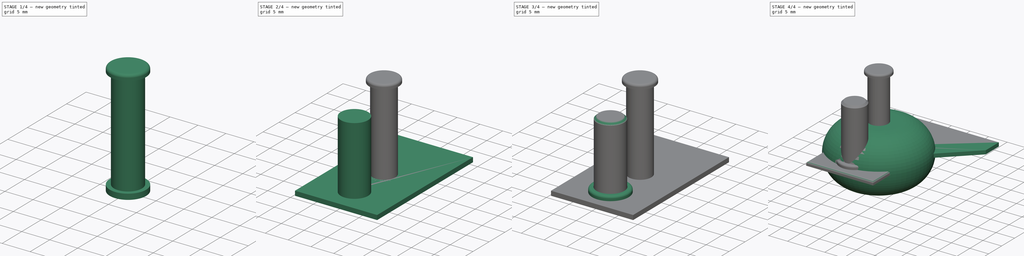
[diagram: build sequence overview — one tinted view per stage of 4, left to right]
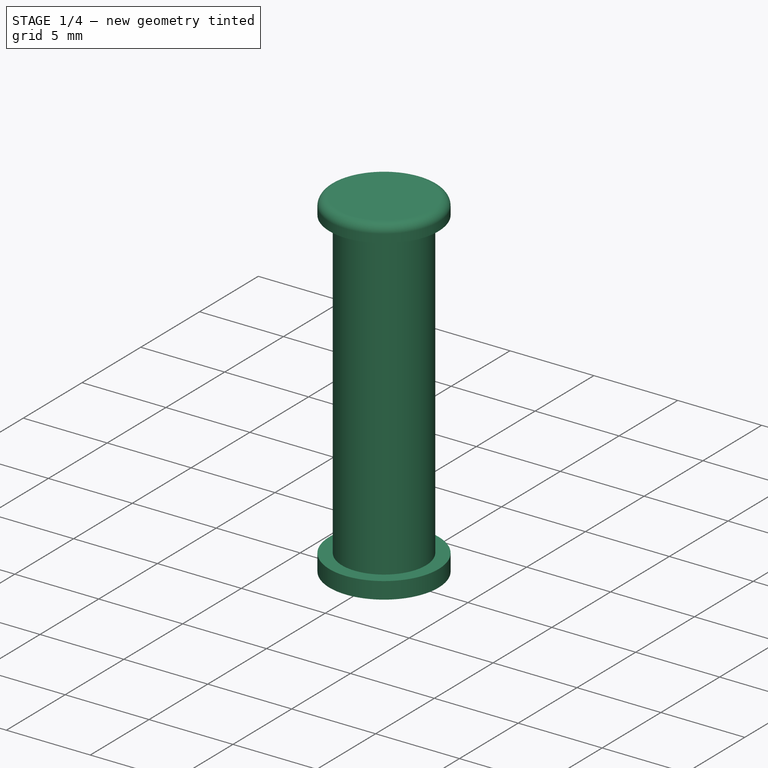
[diagram: stage 1 of 4 — iso view after this stage's code; geometry added in this stage tinted green]
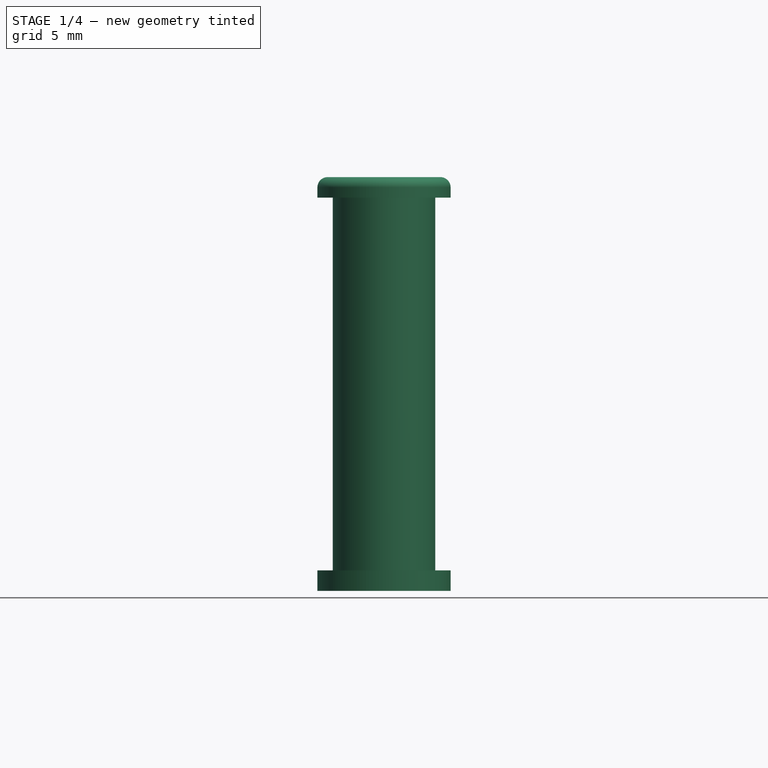
[diagram: stage 1 of 4 — front view after this stage's code; geometry added in this stage tinted green]
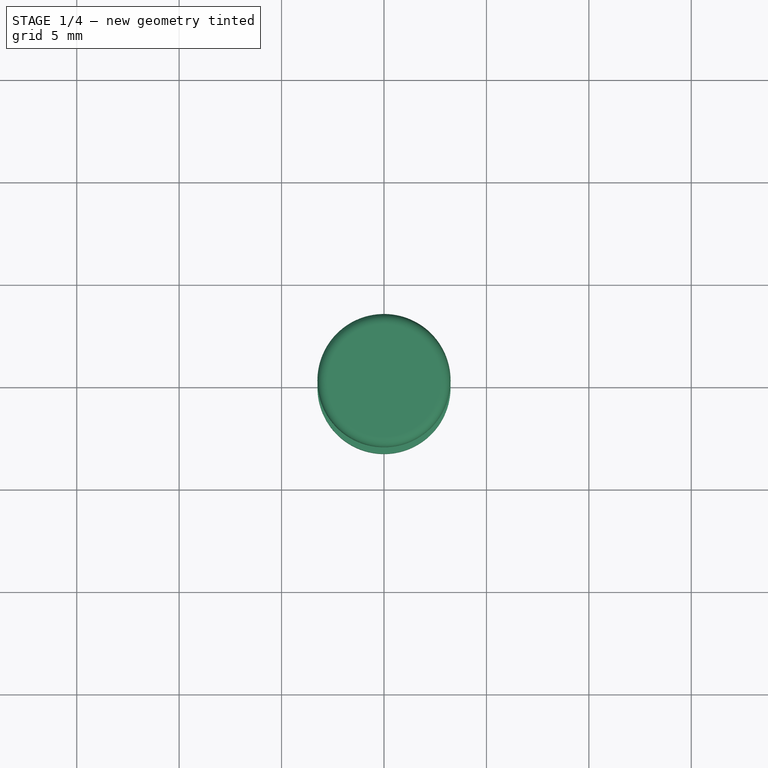
[diagram: stage 1 of 4 — top view after this stage's code; geometry added in this stage tinted green]
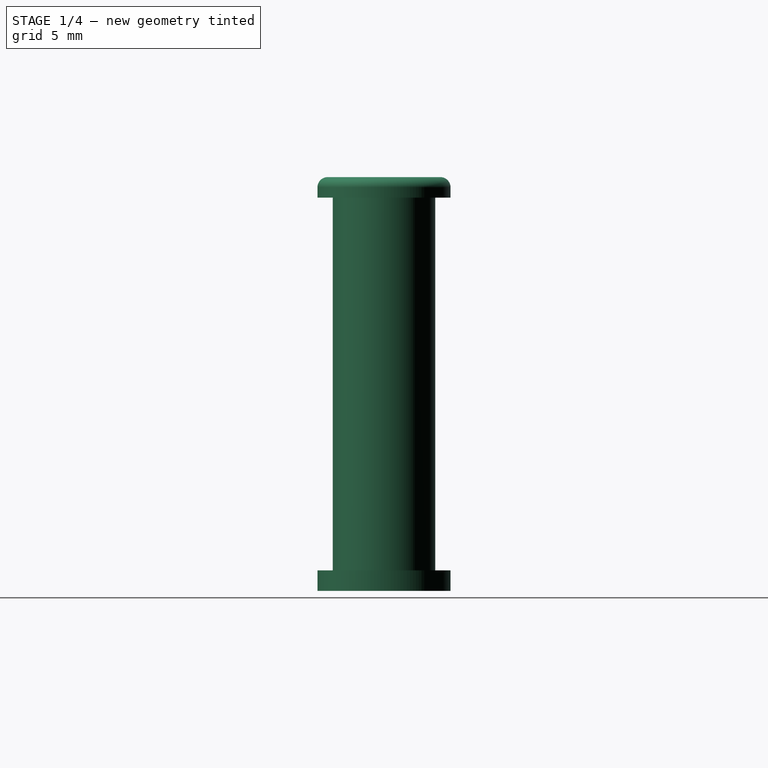
[diagram: stage 1 of 4 — right view after this stage's code; geometry added in this stage tinted green]
FCSTD DOCUMENT  (FreeCAD 1.0R39109 (Git))
Label: ruota_girevole_componenti
License: All rights reserved
LicenseURL: https://en.wikipedia.org/wiki/All_rights_reserved
objects: PartDesign::CoordinateSystem×10, Sketcher::SketchObject×9, PartDesign::Pad×7, PartDesign::Body×4, PartDesign::Fillet×4, PartDesign::Revolution×1, Spreadsheet::Sheet×1, PartDesign::Pocket×1, PartDesign::Chamfer×1
note: 74 computed .brp shape members not serialized (recipe doc carries the construction recipe); baked Part::Feature solids carry a one-line shape summary decoded from their .brp

FEATURE [PartDesign::CoordinateSystem] LCS_lato_sx
  AttacherType = Attacher::AttachEngine3D
  AttachmentSupport = -> [Pad002]
  MapMode = 7
  Placement = pos=(-9,15,0) rot=(0,0,1;0rad)
FEATURE [PartDesign::CoordinateSystem] LCS_lato_dx
  AttacherType = Attacher::AttachEngine3D
  AttachmentSupport = -> [Pad002]
  MapMode = 7
  Placement = pos=(9,15,0) rot=(0,0,1;0rad)
FEATURE [PartDesign::CoordinateSystem] LCS_perno
  AttacherType = Attacher::AttachEngine3D
  AttachmentOffset = pos=(0,0,2) rot=(0,0,1;0rad)
  AttachmentSupport = -> [Pad002]
  MapMode = 11
  Placement = pos=(0,-9.25,3) rot=(0,0,1;1.5708rad)
FEATURE [PartDesign::CoordinateSystem] LCS_base_sx
  AttacherType = Attacher::AttachEngine3D
  AttachmentSupport = -> [Pad]
  MapMode = 1
  Placement = pos=(-10,17.5,0) rot=(0,0,1;0rad)
FEATURE [PartDesign::CoordinateSystem] LCS_base_dx
  AttacherType = Attacher::AttachEngine3D
  AttachmentSupport = -> [Pad]
  MapMode = 1
  Placement = pos=(-10,17.5,1) rot=(0,0,1;0rad)
FEATURE [PartDesign::CoordinateSystem] LCS_cerchio_ruota
  AttacherType = Attacher::AttachEngine3D
  AttachmentSupport = -> [Pocket]
  MapMode = 11
  Placement = pos=(0,2e-15,7.5) rot=(0,0,-1;1.5708rad)
FEATURE [PartDesign::Body] Body  label="BodyRuota"
  AllowCompound = false
  Group = -> [Sketch,Revolution,Sketch001,Pocket,LCS_cerchio_ruota]
  Origin = -> Origin001
  Tip = -> Pocket
FEATURE [PartDesign::CoordinateSystem] LCS_perno_ruota
  AttacherType = Attacher::AttachEngine3D
  AttachmentSupport = -> [Pad]
  MapMode = 11
  Placement = pos=(0,0,0) rot=(0,0,1;1.5708rad)
FEATURE [PartDesign::CoordinateSystem] LCS_nut
  AttacherType = Attacher::AttachEngine3D
  AttachmentSupport = -> [Pad]
  MapMode = 11
  Placement = pos=(0,0,0) rot=(0.707107,-0.707107,0;3.14159rad)
FEATURE [PartDesign::Body] Body001  label="BodyLatoForcella"
  AllowCompound = false
  Group = -> [Sketch002,Pad,LCS_base_sx,LCS_base_dx,LCS_perno_ruota,LCS_nut]
  Origin = -> Origin002
  Tip = -> Pad
FEATURE [PartDesign::CoordinateSystem] LCS_Origin001
  AttacherType = Attacher::AttachEngine3D
  AttachmentSupport = -> [X_Axis004]
  MapMode = 2
FEATURE [Sketcher::SketchObject] Sketch005
  ArcFitTolerance = 1e-06
  AttachmentSupport = -> [XY_Plane004]
  FullyConstrained = true
  MakeInternals = false
  MapMode = 5
  expr: .Constraints.diametro_rivetto = <<mis_ruota>>.r_foro + 1.5 mm
  sketch-geometry (1):
    g0: Circle CenterX=0 CenterY=0 CenterZ=0 NormalX=0 NormalY=0 NormalZ=1 AngleXU=0 Radius=3.25
  constraints (2):
    c: Coincident(g0,g-1)
    c: Diameter(g0) = 6.5  'diametro_rivetto'
FEATURE [PartDesign::Pad] Pad003
  Direction = (0,0,1)
  Length = 1
  Length2 = 10
  Profile = -> Sketch005
  ReferenceAxis = -> Sketch005 [N_Axis]
  Refine = true
  Suppressed = false
  Type = 0
FEATURE [Sketcher::SketchObject] Sketch006
  ArcFitTolerance = 1e-06
  AttachmentSupport = -> [Pad003]
  FullyConstrained = true
  MakeInternals = false
  MapMode = 5
  Placement = pos=(0,0,1) rot=(0,0,1;0rad)
  expr: Constraints[1] = <<mis_ruota>>.r_foro
  sketch-geometry (1):
    g0: Circle CenterX=0 CenterY=0 CenterZ=0 NormalX=0 NormalY=0 NormalZ=1 AngleXU=0 Radius=2.5
  constraints (2):
    c: Coincident(g0,g-1)
    c: Diameter(g0) = 5
FEATURE [PartDesign::Pad] Pad004
  BaseFeature = -> Pad003
  Direction = (0,0,1)
  Length = 18.2
  Length2 = 10
  Profile = -> Sketch006
  ReferenceAxis = -> Sketch006 [N_Axis]
  Refine = true
  Suppressed = false
  Type = 0
FEATURE [Sketcher::SketchObject] Sketch007
  ArcFitTolerance = 1e-06
  AttachmentSupport = -> [Pad004]
  FullyConstrained = true
  MakeInternals = false
  MapMode = 5
  Placement = pos=(0,0,19.2) rot=(0,0,1;0rad)
  expr: Constraints[1] = <<mis_ruota>>.r_foro + 1.5 mm
  sketch-geometry (1):
    g0: Circle CenterX=0 CenterY=0 CenterZ=0 NormalX=0 NormalY=0 NormalZ=1 AngleXU=0 Radius=3.25
  constraints (2):
    c: Coincident(g0,g-1)
    c: Diameter(g0) = 6.5
FEATURE [PartDesign::Pad] Pad005
  BaseFeature = -> Pad004
  Direction = (0,0,1)
  Length = 1
  Length2 = 10
  Profile = -> Sketch007
  ReferenceAxis = -> Sketch007 [N_Axis]
  Refine = true
  Suppressed = false
  Type = 0
FEATURE [PartDesign::Body] Body002  label="BodyBaseForcella"
  AllowCompound = false
  Group = -> [Sketch003,Pad001,Sketch004,Pad002,LCS_lato_sx,LCS_lato_dx,LCS_perno,Sketch008,Pad006,Fillet,Chamfer,Fillet001]
  Origin = -> Origin003
  Tip = -> Fillet001
FEATURE [PartDesign::Fillet] Fillet002
  Base = -> Pad005 [Edge9]
  BaseFeature = -> Pad005
  Radius = 0.5
  Refine = true
  SupportTransform = false
  Suppressed = false
  UseAllEdges = false
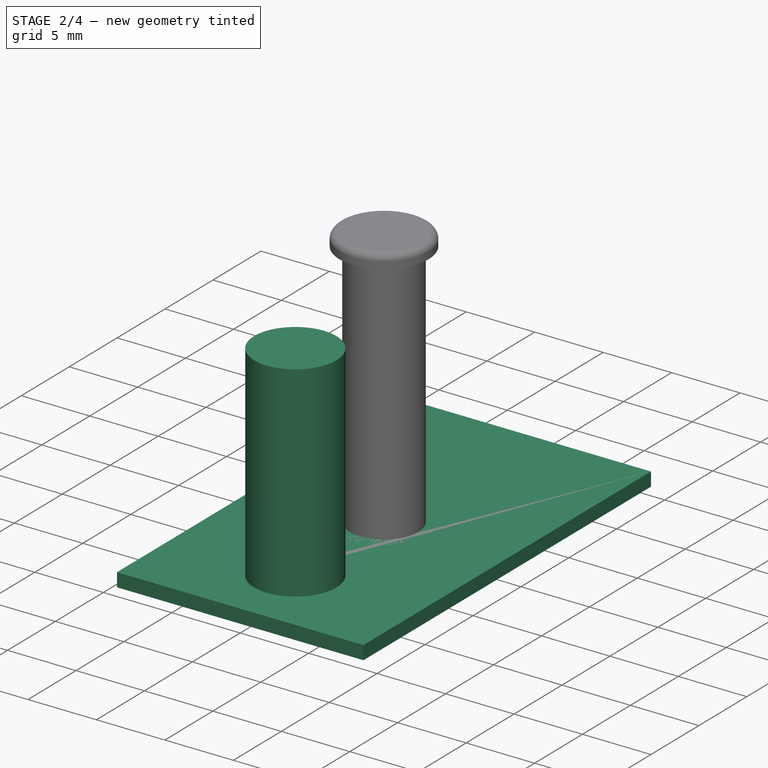
[diagram: stage 2 of 4 — iso view after this stage's code; geometry added in this stage tinted green]
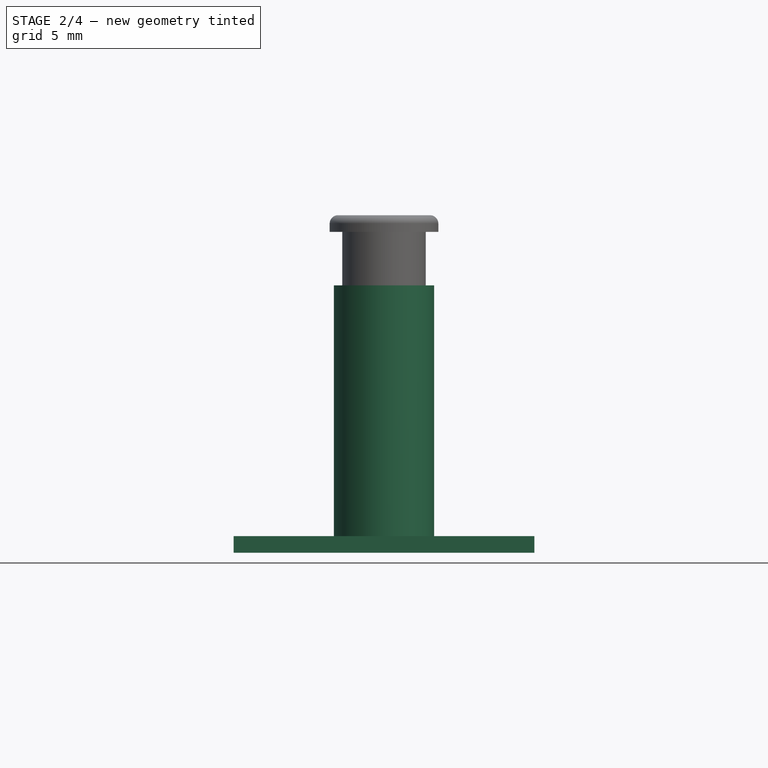
[diagram: stage 2 of 4 — front view after this stage's code; geometry added in this stage tinted green]
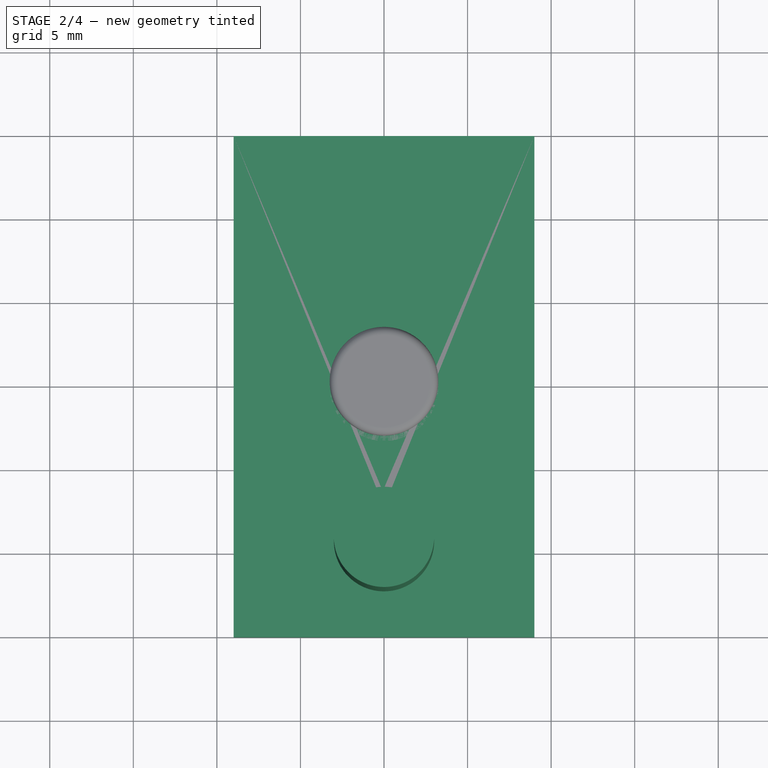
[diagram: stage 2 of 4 — top view after this stage's code; geometry added in this stage tinted green]
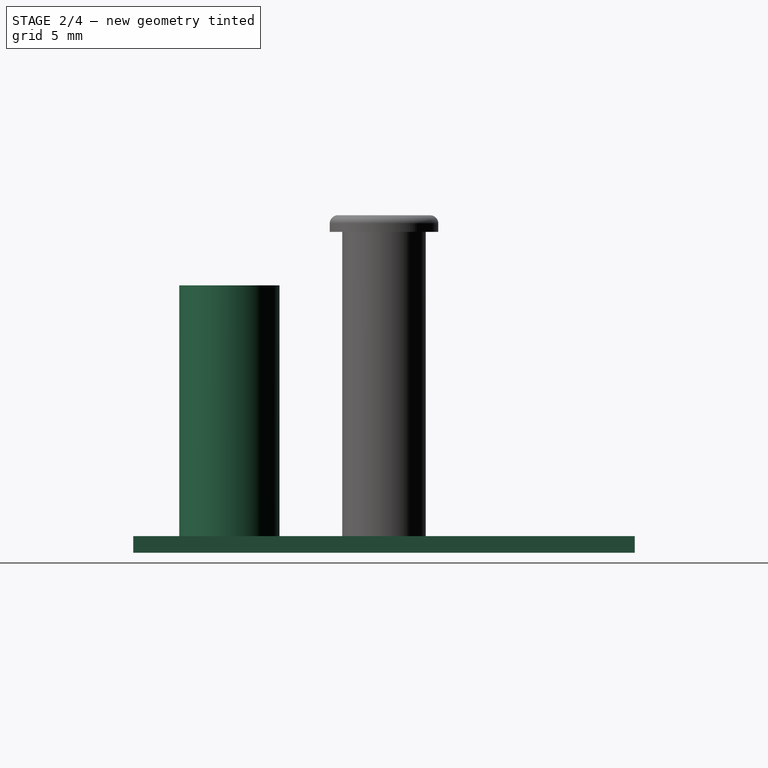
[diagram: stage 2 of 4 — right view after this stage's code; geometry added in this stage tinted green]
FEATURE [Sketcher::SketchObject] Sketch003
  ArcFitTolerance = 1e-06
  AttachmentSupport = -> [XY_Plane003]
  FullyConstrained = true
  MakeInternals = false
  MapMode = 5
  expr: Constraints[10] = <<mis_ruota>>.larg + 3 mm
  expr: Constraints[9] = <<mis_ruota>>.lung_base_fork
  sketch-geometry (4):
    g0: LineSegment StartX=-9 StartY=15 StartZ=0 EndX=-9 EndY=-15 EndZ=0
    g1: LineSegment StartX=-9 StartY=-15 StartZ=0 EndX=9 EndY=-15 EndZ=0
    g2: LineSegment StartX=9 StartY=-15 StartZ=0 EndX=9 EndY=15 EndZ=0
    g3: LineSegment StartX=9 StartY=15 StartZ=0 EndX=-9 EndY=15 EndZ=0
  constraints (11):
    c: Coincident(g0,g1)
    c: Coincident(g1,g2)
    c: Coincident(g2,g3)
    c: Coincident(g3,g0)
    c: Vertical(g0)
    c: Vertical(g2)
    c: Horizontal(g1)
    c: Horizontal(g3)
    c: Symmetric(g0,g1,g-1)
    c: DistanceY(g0,g0) = 30
    c: DistanceX(g3,g3) = 18
FEATURE [PartDesign::Pad] Pad001
  Direction = (0,0,1)
  Length = 1
  Length2 = 10
  Profile = -> Sketch003
  ReferenceAxis = -> Sketch003 [N_Axis]
  Refine = true
  Suppressed = false
  Type = 0
FEATURE [Sketcher::SketchObject] Sketch004
  ArcFitTolerance = 1e-06
  AttachmentSupport = -> [Pad001]
  FullyConstrained = true
  MakeInternals = false
  MapMode = 5
  Placement = pos=(0,0,1) rot=(0,0,1;0rad)
  expr: Constraints[1] = <<mis_ruota>>.pos_perno_fork
  expr: Constraints[2] = <<mis_ruota>>.diam_perno
  sketch-geometry (1):
    g0: Circle CenterX=0 CenterY=-9.25 CenterZ=0 NormalX=0 NormalY=0 NormalZ=1 AngleXU=0 Radius=3
  constraints (3):
    c: PointOnObject(g0,g-2)
    c: DistanceY(g0,g-1) = 9.25
    c: Diameter(g0) = 6
FEATURE [PartDesign::Pad] Pad002
  BaseFeature = -> Pad001
  Direction = (0,0,1)
  Length = 15
  Length2 = 10
  Profile = -> Sketch004
  ReferenceAxis = -> Sketch004 [N_Axis]
  Refine = true
  Suppressed = false
  Type = 0
  expr: Length = <<mis_ruota>>.lung_perno
FEATURE [PartDesign::Fillet] Fillet003
  Base = -> Fillet002 [Edge11]
  BaseFeature = -> Fillet002
  Radius = 0.5
  Refine = true
  SupportTransform = false
  Suppressed = false
  UseAllEdges = false
FEATURE [PartDesign::Body] BodyAsseRuota
  AllowCompound = false
  Group = -> [LCS_Origin001,Sketch005,Pad003,Sketch006,Pad004,Sketch007,Pad005,LCS_base_rivetto,Fillet002,Fillet003]
  Origin = -> Origin004
  Tip = -> Fillet003
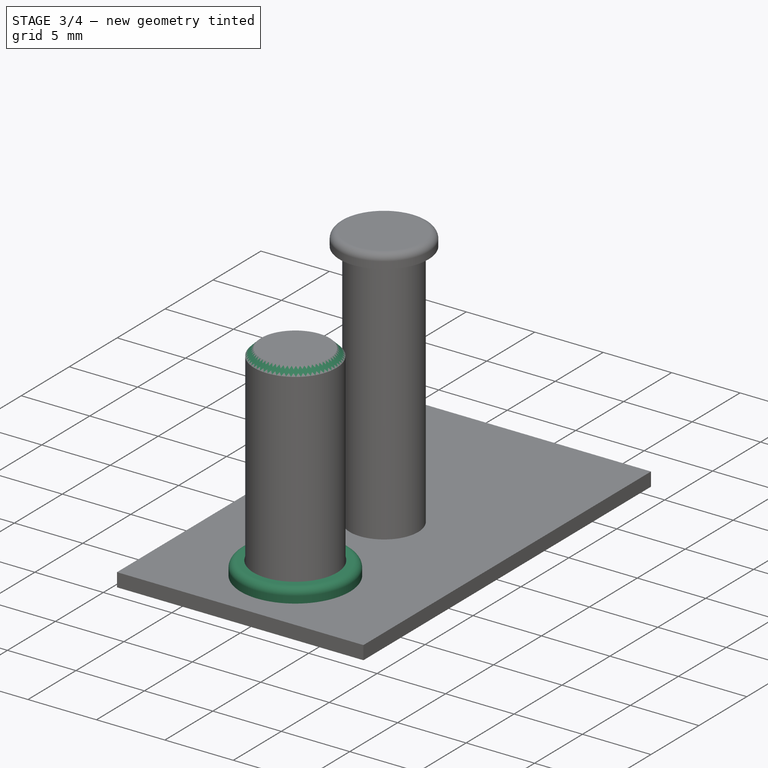
[diagram: stage 3 of 4 — iso view after this stage's code; geometry added in this stage tinted green]
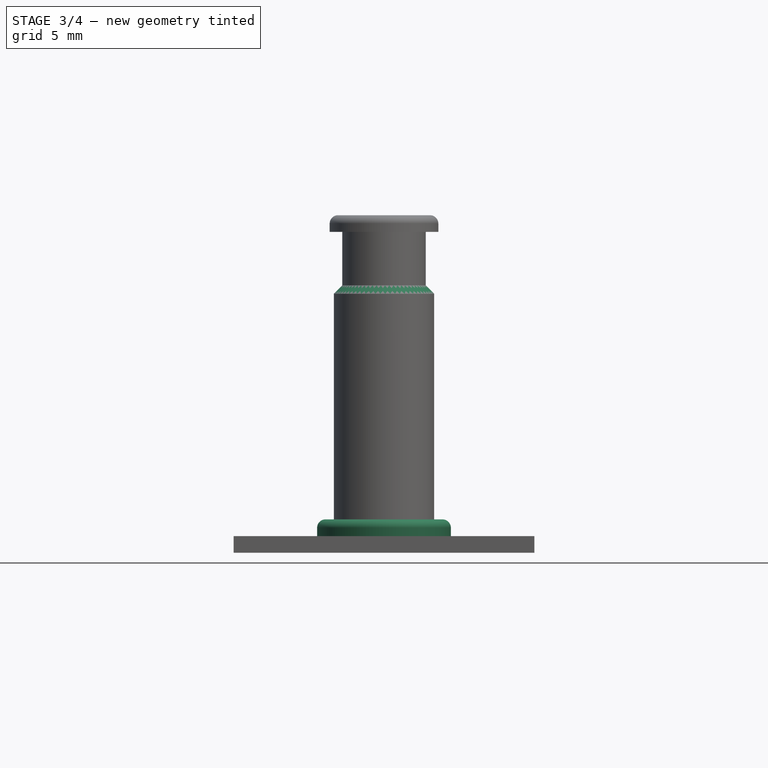
[diagram: stage 3 of 4 — front view after this stage's code; geometry added in this stage tinted green]
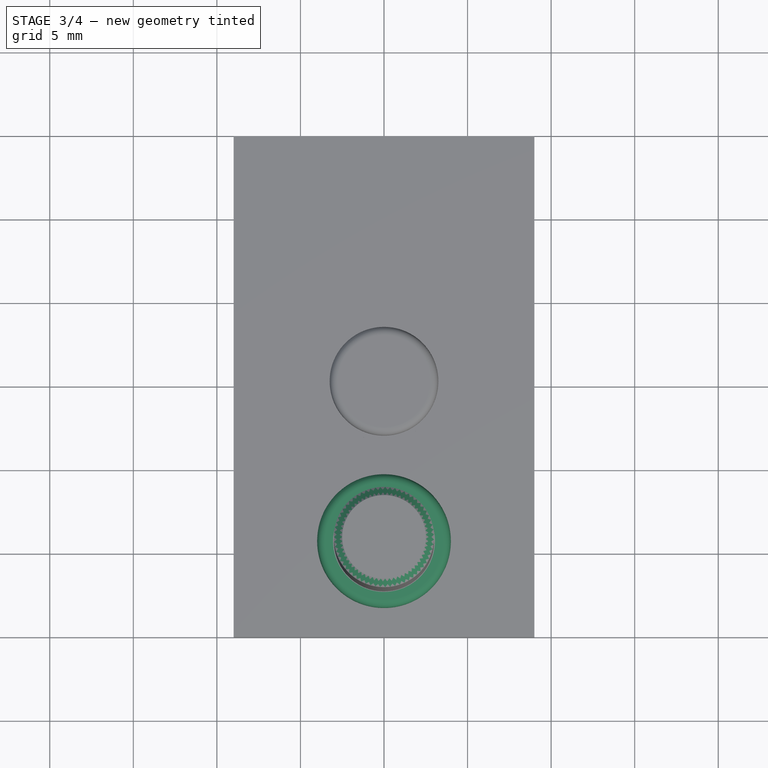
[diagram: stage 3 of 4 — top view after this stage's code; geometry added in this stage tinted green]
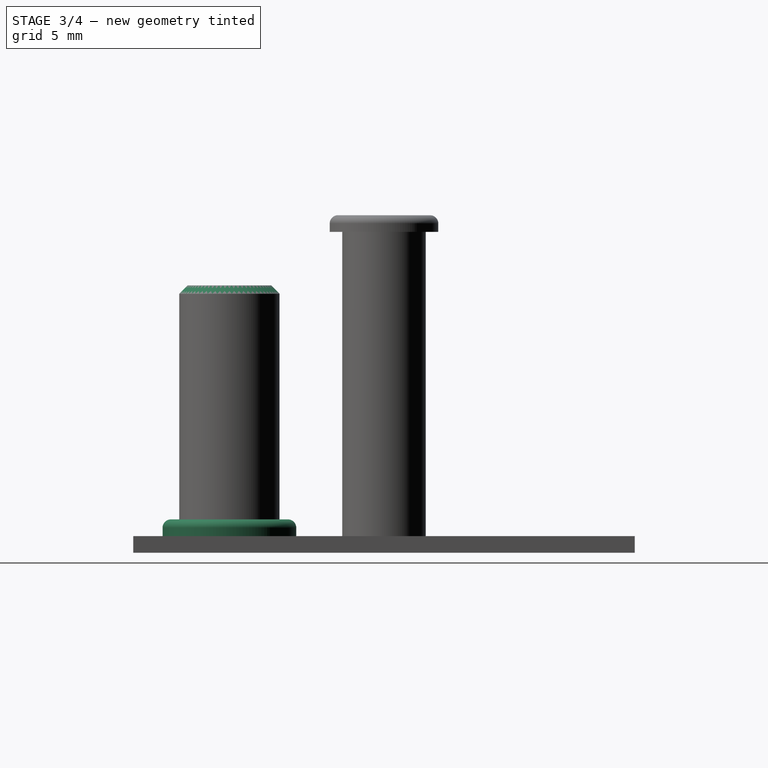
[diagram: stage 3 of 4 — right view after this stage's code; geometry added in this stage tinted green]
FEATURE [PartDesign::CoordinateSystem] LCS_base_rivetto
  AttacherType = Attacher::AttachEngine3D
  AttachmentSupport = -> [Pad005]
  MapMode = 11
  Placement = pos=(0,0,19.2) rot=(0,0,1;1.5708rad)
FEATURE [Sketcher::SketchObject] Sketch008  label="SketchRondellaBase"
  ArcFitTolerance = 1e-06
  AttachmentSupport = -> [XY_Plane003]
  ExternalGeometry = -> [Pad002]
  FullyConstrained = true
  MakeInternals = false
  MapMode = 5
  expr: Constraints[1] = <<mis_ruota>>.diam_int_rond_base
  expr: Constraints[3] = <<mis_ruota>>.diam_est_rond_base
  sketch-geometry (2):
    g0: Circle CenterX=0 CenterY=-9.25 CenterZ=0 NormalX=0 NormalY=0 NormalZ=1 AngleXU=0 Radius=3.05
    g1: Circle CenterX=0 CenterY=-9.25 CenterZ=0 NormalX=0 NormalY=0 NormalZ=1 AngleXU=0 Radius=4
  constraints (4):
    c: Coincident(g0,g-3)
    c: Diameter(g0) = 6.1
    c: Coincident(g1,g0)
    c: Diameter(g1) = 8
FEATURE [PartDesign::Pad] Pad006
  BaseFeature = -> Pad002
  Direction = (0,0,1)
  Length = 2
  Length2 = 10
  Profile = -> Sketch008
  ReferenceAxis = -> Sketch008 [N_Axis]
  Refine = true
  Suppressed = false
  Type = 0
  expr: Length = <<mis_ruota>>.spess_rond_base
FEATURE [PartDesign::Fillet] Fillet
  Base = -> Pad006 [Edge15]
  BaseFeature = -> Pad006
  Radius = 0.5
  Refine = true
  SupportTransform = false
  Suppressed = false
  UseAllEdges = false
FEATURE [PartDesign::Chamfer] Chamfer
  Angle = 45
  Base = -> Fillet [Edge23]
  BaseFeature = -> Fillet
  ChamferType = 0
  FlipDirection = false
  Refine = true
  Size = 0.5
  Size2 = 1
  SupportTransform = false
  Suppressed = false
  UseAllEdges = false
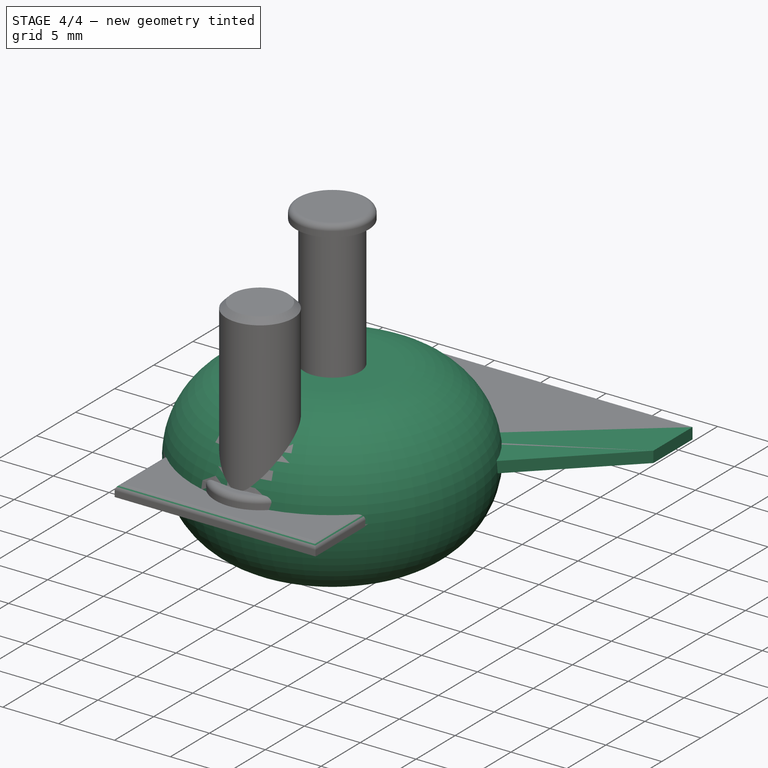
[diagram: stage 4 of 4 — iso view after this stage's code; geometry added in this stage tinted green]
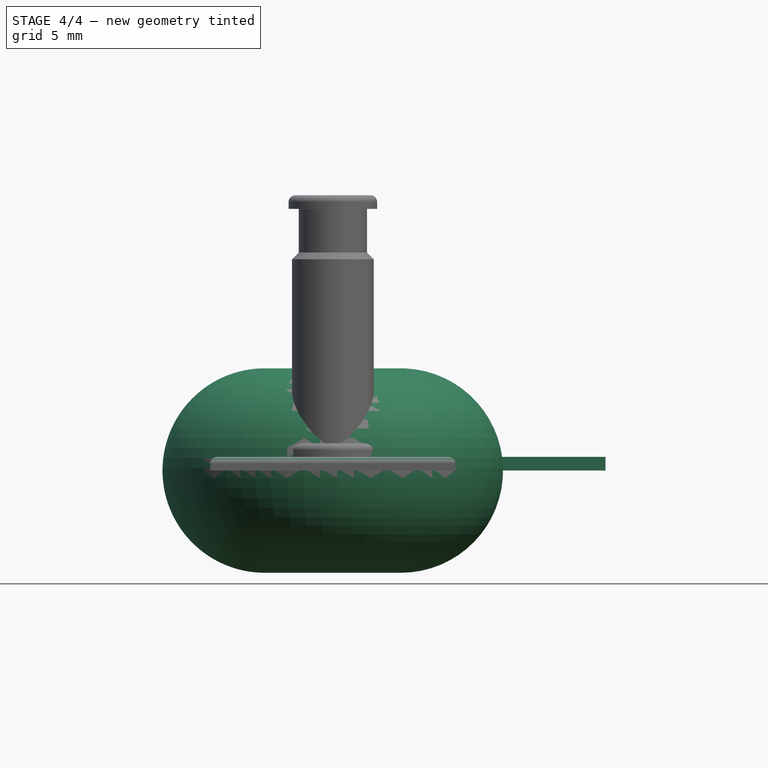
[diagram: stage 4 of 4 — front view after this stage's code; geometry added in this stage tinted green]
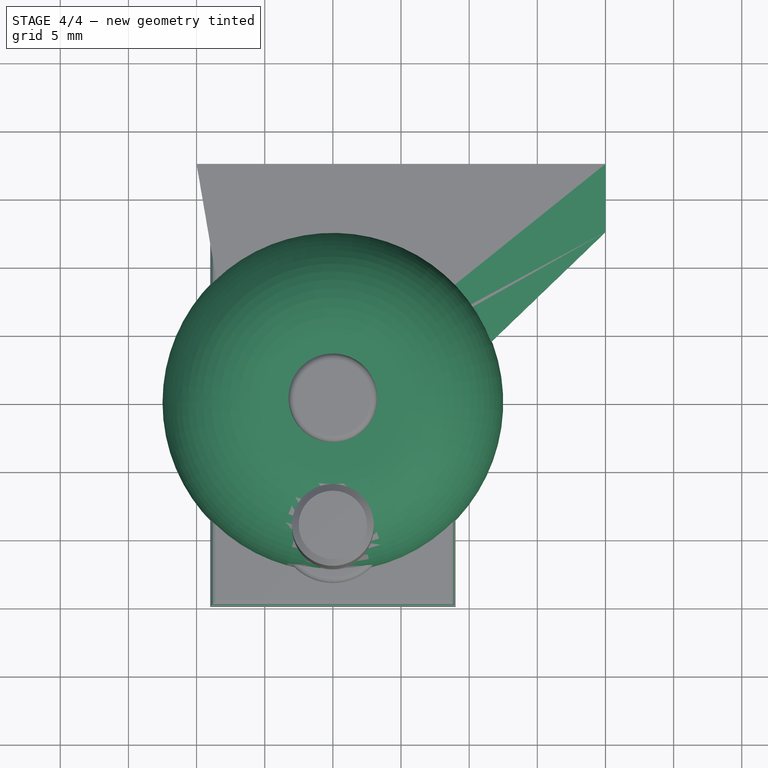
[diagram: stage 4 of 4 — top view after this stage's code; geometry added in this stage tinted green]
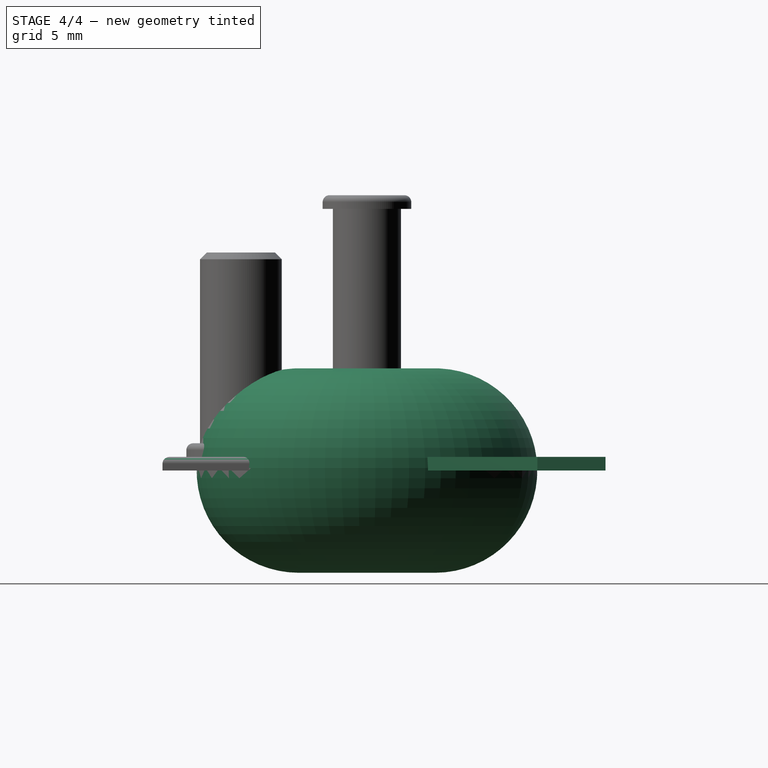
[diagram: stage 4 of 4 — right view after this stage's code; geometry added in this stage tinted green]
FEATURE [Sketcher::SketchObject] Sketch
  ArcFitTolerance = 1e-06
  AttachmentSupport = -> [XZ_Plane001]
  FullyConstrained = true
  MakeInternals = false
  MapMode = 5
  Placement = pos=(0,0,0) rot=(1,0,0;1.5708rad)
  expr: Constraints[0] = <<mis_ruota>>.larg
  expr: Constraints[12] = <<mis_ruota>>.larg / 2
  expr: Constraints[13] = <<mis_ruota>>.raggio
  sketch-geometry (5):
    g0: LineSegment StartX=5 StartY=7.5 StartZ=0 EndX=0 EndY=7.5 EndZ=0
    g1: LineSegment StartX=5 StartY=-7.5 StartZ=0 EndX=0 EndY=-7.5 EndZ=0
    g2: LineSegment StartX=0 StartY=7.5 StartZ=0 EndX=0 EndY=-7.5 EndZ=0
    g3: ArcOfCircle CenterX=5 CenterY=0 CenterZ=0 NormalX=0 NormalY=0 NormalZ=1 AngleXU=0 Radius=7.5 StartAngle=4.71239 EndAngle=7.85398
    g4: GeomPoint [constr] X=12.5 Y=0 Z=0
  constraints (14):
    c: DistanceY(g1,g0) = 15
    c: Horizontal(g0)
    c: PointOnObject(g1,g-2)
    c: Horizontal(g1)
    c: Coincident(g2,g0)
    c: Coincident(g2,g1)
    c: Vertical(g2)
    c: Symmetric(g1,g0,g-1)
    c: Coincident(g3,g0)
    c: Coincident(g3,g1)
    c: PointOnObject(g4,g3)
    c: PointOnObject(g4,g-1)
    c: Radius(g3) = 7.5
    c: DistanceX(g0,g4) = 12.5
FEATURE [PartDesign::Revolution] Revolution
  Angle = 360
  Angle2 = 60
  Axis = (0,2e-16,1)
  Base = (0,0,0)
  Midplane = true
  Placement = pos=(0,0,0) rot=(1,0,0;1.5708rad)
  Profile = -> Sketch
  ReferenceAxis = -> Sketch [V_Axis]
  Refine = true
  Reversed = true
  Suppressed = false
  Type = 0
FEATURE [Spreadsheet::Sheet] Spreadsheet  label="mis_ruota"
  cells = A1='Raggio ruota (raggio); B1(raggio)==12.5 mm; A2='Larghezza ruota (larg); B2(larg)==15 mm; A3='Foro asse ruota (r_foro); B3(r_foro)==5 mm; A5='Lunghezza base forcella (lung_base_fork); B5(lung_base_fork)==2 * raggio + 5 mm; A6='Altezza piede forcella (alt_piede_fork); B6(alt_piede_fork)==5 mm; A7='Posizione perno forcella (pos_perno_fork); B7(pos_perno_fork)==lung_base_fork * 3 / 8 - 2 mm; A8='Diametro perno (diam_perno); B8(diam_perno)==6 mm; A9='Lunghezza perno (lung_perno); B9(lung_perno)==15 mm; A11='Diametro interno rondella base perno (diam_int_rond_base); B11(diam_int_rond_base)==diam_perno + 0.1 mm; A12='Diametro esterno rondella base perno (diam_int_rond_base); B12(diam_est_rond_base)==diam_perno + 2 mm; A13=' Spessore rondella di base (spess_rond_base); B13(spess_rond_base)==2 mm
FEATURE [Sketcher::SketchObject] Sketch001
  ArcFitTolerance = 1e-06
  AttachmentSupport = -> [Revolution]
  FullyConstrained = true
  MakeInternals = false
  MapMode = 5
  Placement = pos=(0,3.3e-15,7.5) rot=(0,0,1;3.14159rad)
  expr: Constraints[1] = <<mis_ruota>>.r_foro
  sketch-geometry (1):
    g0: Circle CenterX=0 CenterY=0 CenterZ=0 NormalX=0 NormalY=0 NormalZ=1 AngleXU=0 Radius=2.5
  constraints (2):
    c: Coincident(g0,g-1)
    c: Diameter(g0) = 5
FEATURE [PartDesign::Pocket] Pocket
  BaseFeature = -> Revolution
  Direction = (0,0,-1)
  Length = 5
  Length2 = 5
  Placement = pos=(0,0,0) rot=(1,0,0;1.5708rad)
  Profile = -> Sketch001
  ReferenceAxis = -> Sketch001 [N_Axis]
  Refine = true
  Suppressed = false
  Type = 1
FEATURE [Sketcher::SketchObject] Sketch002
  ArcFitTolerance = 1e-06
  AttachmentSupport = -> [XY_Plane002]
  FullyConstrained = true
  MakeInternals = false
  MapMode = 5
  expr: Constraints[11] = <<mis_ruota>>.r_foro
  expr: Constraints[12] = <<mis_ruota>>.r_foro + 2 mm
  expr: Constraints[13] = <<mis_ruota>>.lung_base_fork
  expr: Constraints[14] = <<mis_ruota>>.alt_piede_fork
  expr: Constraints[17] = <<mis_ruota>>.lung_base_fork / 3
  expr: Constraints[18] = <<mis_ruota>>.raggio
  sketch-geometry (7):
    g0: LineSegment StartX=-7 StartY=9e-16 StartZ=0 EndX=-10 EndY=17.5 EndZ=0
    g1: LineSegment StartX=-10 StartY=17.5 StartZ=0 EndX=20 EndY=17.5 EndZ=0
    g2: LineSegment StartX=20 StartY=17.5 StartZ=0 EndX=20 EndY=12.5 EndZ=0
    g3: LineSegment StartX=20 StartY=12.5 StartZ=0 EndX=7 EndY=-1.8e-15 EndZ=0
    g4: ArcOfCircle CenterX=0 CenterY=0 CenterZ=0 NormalX=0 NormalY=0 NormalZ=1 AngleXU=0 Radius=7 StartAngle=3.14159 EndAngle=6.28319
    g5: Circle CenterX=0 CenterY=0 CenterZ=0 NormalX=0 NormalY=0 NormalZ=1 AngleXU=0 Radius=2.5
    g6: GeomPoint [constr] X=0 Y=17.5 Z=0
  constraints (19):
    c: PointOnObject(g0,g-1)
    c: Coincident(g0,g1)
    c: Horizontal(g1)
    c: Coincident(g1,g2)
    c: Coincident(g2,g3)
    c: PointOnObject(g3,g-1)
    c: Coincident(g4,g-1)
    c: Coincident(g4,g0)
    c: Coincident(g4,g3)
    c: Perpendicular(g2,g1)
    c: Coincident(g5,g4)
    c: Diameter(g5) = 5
    c: Radius(g4) = 7
    c: DistanceX(g1,g1) = 30
    c: Distance(g2,g2) = 5
    c: PointOnObject(g6,g-2)
    c: PointOnObject(g6,g1)
    c: Distance(g0,g6) = 10
    c: Distance(g2,g-1) = 12.5
FEATURE [PartDesign::Pad] Pad
  Direction = (0,0,1)
  Length = 1
  Length2 = 10
  Profile = -> Sketch002
  ReferenceAxis = -> Sketch002 [N_Axis]
  Refine = true
  Suppressed = false
  Type = 0
FEATURE [PartDesign::Fillet] Fillet001
  Base = -> Chamfer [Edge14,Edge15,Edge17,Edge16]
  BaseFeature = -> Chamfer
  Radius = 0.5
  Refine = true
  SupportTransform = false
  Suppressed = false
  UseAllEdges = false
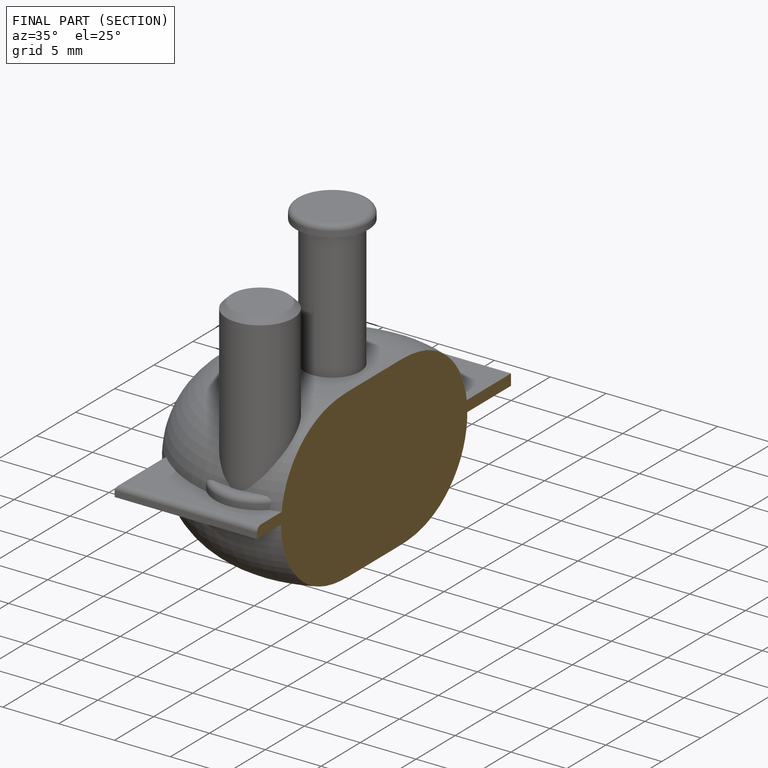
[diagram: finished part — half-section view (interior)]
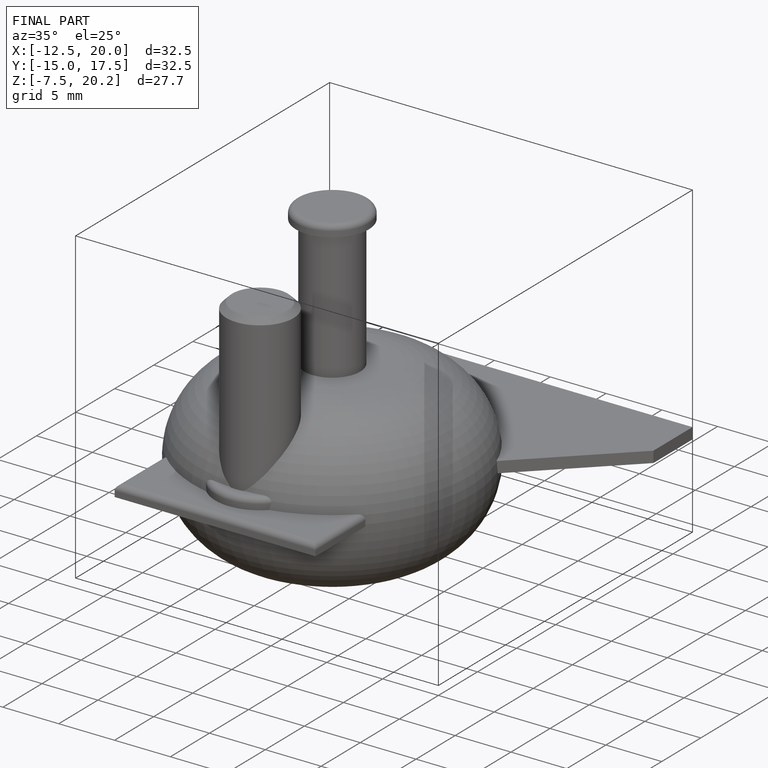
[diagram: finished part — iso view with bounding-box wireframe]
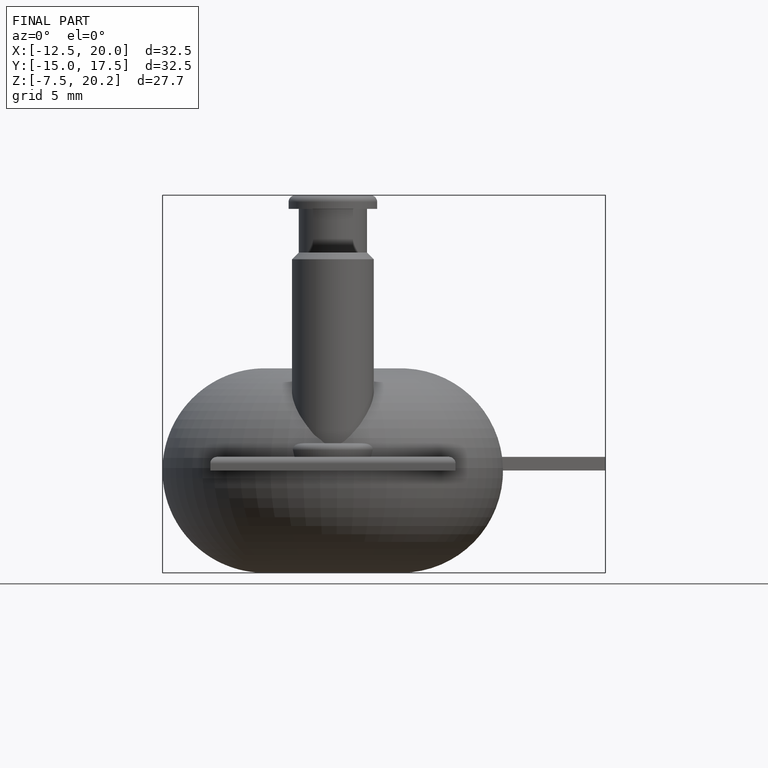
[diagram: finished part — front view with bounding-box wireframe]
